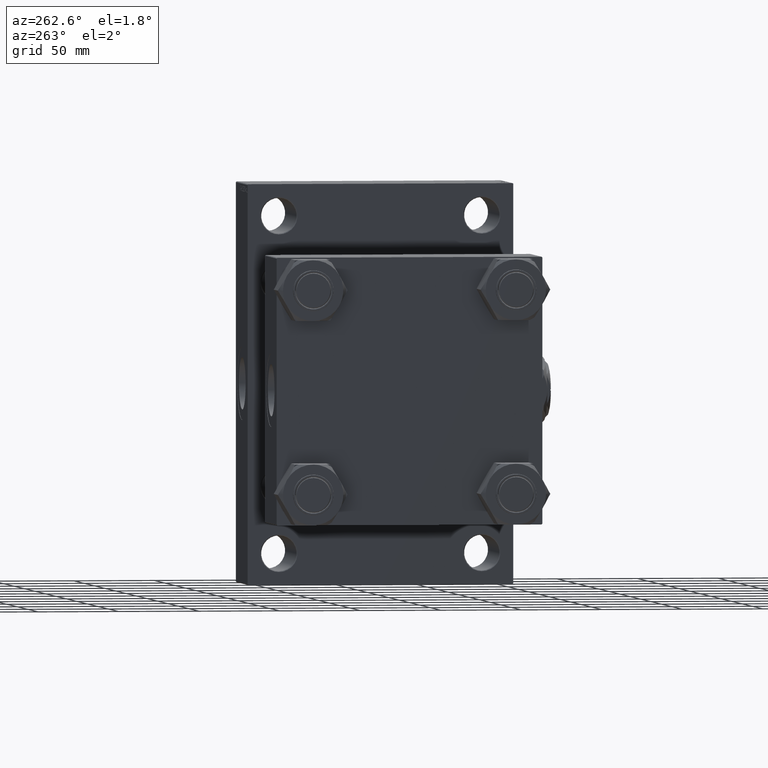
[diagram: clean part render]
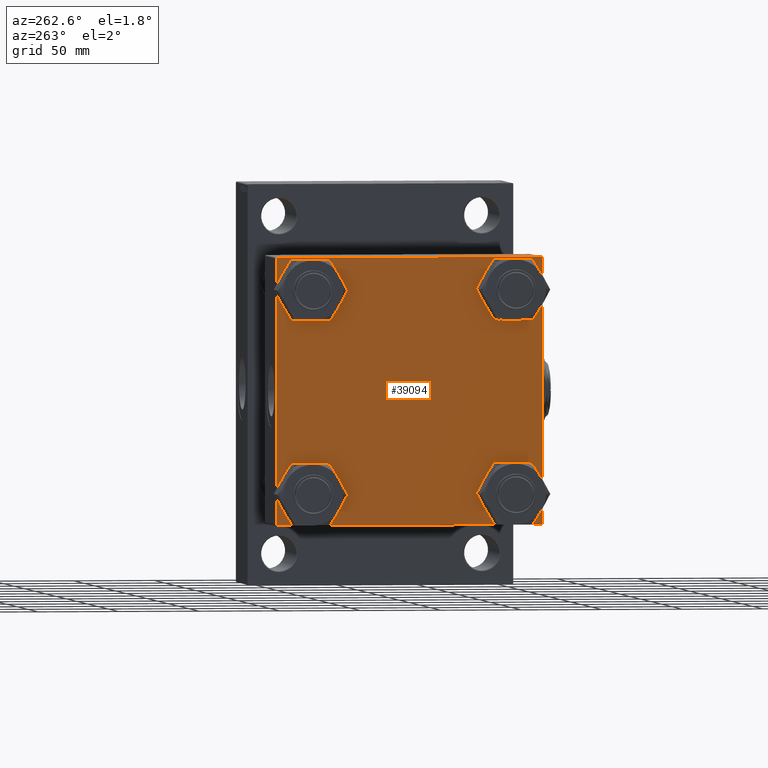
[diagram: same view with one face highlighted and labeled with its STEP entity id]
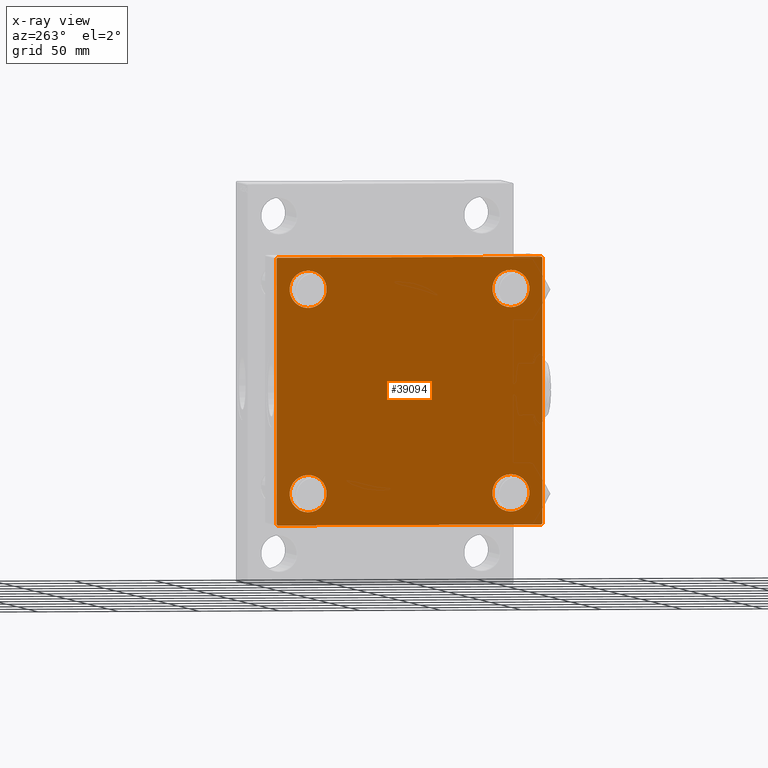
[diagram: x-ray of the same camera — body ghosted, the highlighted face saturated]
A machine part, auxiliary view. The second image highlights one B-rep face of the part: STEP entity #39094.
The next image is the same camera in x-ray: the body ghosted, the highlighted face saturated — about 0% of this face is hidden behind the body in this view.
In plain terms, the highlighted planar face has unit normal (-1, 0, 0).
Its self-contained STEP definition (entity closure, byte-faithful):
#364 = EDGE_CURVE ( 'NONE', #43407, #43970, #48313, .T. ) ;
#513 = LINE ( 'NONE', #38645, #2819 ) ;
#860 = ORIENTED_EDGE ( 'NONE', *, *, #45521, .T. ) ;
#878 = AXIS2_PLACEMENT_3D ( 'NONE', #19694, #15901, #27020 ) ;
#913 = ORIENTED_EDGE ( 'NONE', *, *, #29666, .T. ) ;
#977 = CIRCLE ( 'NONE', #7442, 11.50000000000001066 ) ;
#1430 = PLANE ( 'NONE',  #32604 ) ;
#2237 = VERTEX_POINT ( 'NONE', #25948 ) ;
#2379 = LINE ( 'NONE', #30826, #13463 ) ;
#2819 = VECTOR ( 'NONE', #4066, 1000.000000000000114 ) ;
#3433 = CARTESIAN_POINT ( 'NONE',  ( 0.000000000000000000, 82.50000000000002842, 82.50000000000002842 ) ) ;
#3715 = DIRECTION ( 'NONE',  ( 0.000000000000000000, -1.000000000000000000, -8.410780489584519171E-17 ) ) ;
#4066 = DIRECTION ( 'NONE',  ( -0.000000000000000000, -0.7071067811865474617, -0.7071067811865474617 ) ) ;
#4760 = CARTESIAN_POINT ( 'NONE',  ( 0.000000000000000000, -62.94999999999998153, -51.45000000000000995 ) ) ;
#4826 = ORIENTED_EDGE ( 'NONE', *, *, #33038, .T. ) ;
#5235 = CARTESIAN_POINT ( 'NONE',  ( 0.000000000000000000, 0.000000000000000000, 0.000000000000000000 ) ) ;
#6613 = ORIENTED_EDGE ( 'NONE', *, *, #39920, .T. ) ;
#6806 = CARTESIAN_POINT ( 'NONE',  ( 0.000000000000000000, 62.95000000000000284, -62.95000000000000284 ) ) ;
#7195 = CIRCLE ( 'NONE', #43449, 11.50000000000001066 ) ;
#7228 = DIRECTION ( 'NONE',  ( 0.000000000000000000, 0.000000000000000000, 1.000000000000000000 ) ) ;
#7442 = AXIS2_PLACEMENT_3D ( 'NONE', #28241, #43636, #24451 ) ;
#7908 = CARTESIAN_POINT ( 'NONE',  ( 0.000000000000000000, -81.99999999999997158, 82.50000000000001421 ) ) ;
#8299 = CIRCLE ( 'NONE', #47797, 11.50000000000001066 ) ;
#8434 = EDGE_CURVE ( 'NONE', #44608, #48325, #15570, .T. ) ;
#9012 = FACE_OUTER_BOUND ( 'NONE', #23523, .T. ) ;
#9183 = VECTOR ( 'NONE', #39345, 999.9999999999998863 ) ;
#9752 = CARTESIAN_POINT ( 'NONE',  ( 0.000000000000000000, 82.50000000000002842, -82.00000000000000000 ) ) ;
#9877 = EDGE_CURVE ( 'NONE', #24229, #45655, #7195, .T. ) ;
#9923 = ORIENTED_EDGE ( 'NONE', *, *, #22734, .T. ) ;
#10230 = LINE ( 'NONE', #3433, #22522 ) ;
#10556 = EDGE_CURVE ( 'NONE', #38354, #39057, #10230, .T. ) ;
#11010 = CARTESIAN_POINT ( 'NONE',  ( 0.000000000000000000, -62.94999999999998153, 62.95000000000001705 ) ) ;
#11611 = EDGE_LOOP ( 'NONE', ( #4826, #9923 ) ) ;
#11619 = EDGE_LOOP ( 'NONE', ( #18708, #44021 ) ) ;
#11715 = CARTESIAN_POINT ( 'NONE',  ( 0.000000000000000000, -62.94999999999998153, 51.45000000000000995 ) ) ;
#11836 = CARTESIAN_POINT ( 'NONE',  ( 0.000000000000000000, -82.25000000000115108, -82.24999999999886313 ) ) ;
#12902 = CARTESIAN_POINT ( 'NONE',  ( 0.000000000000000000, 62.95000000000000284, -51.44999999999999574 ) ) ;
#13092 = VERTEX_POINT ( 'NONE', #40693 ) ;
#13463 = VECTOR ( 'NONE', #46225, 1000.000000000000000 ) ;
#13503 = VERTEX_POINT ( 'NONE', #38478 ) ;
#14762 = DIRECTION ( 'NONE',  ( 0.000000000000000000, 0.000000000000000000, 1.000000000000000000 ) ) ;
#14789 = EDGE_CURVE ( 'NONE', #43970, #43407, #45205, .T. ) ;
#14946 = ORIENTED_EDGE ( 'NONE', *, *, #8434, .F. ) ;
#15105 = VECTOR ( 'NONE', #41633, 1000.000000000000114 ) ;
#15570 = LINE ( 'NONE', #18352, #30627 ) ;
#15859 = EDGE_CURVE ( 'NONE', #34023, #13503, #35575, .T. ) ;
#15901 = DIRECTION ( 'NONE',  ( 1.000000000000000000, -0.000000000000000000, -0.000000000000000000 ) ) ;
#17093 = DIRECTION ( 'NONE',  ( -1.000000000000000000, 0.000000000000000000, 0.000000000000000000 ) ) ;
#18352 = CARTESIAN_POINT ( 'NONE',  ( 0.000000000000000000, 82.50000000000002842, 82.50000000000002842 ) ) ;
#18708 = ORIENTED_EDGE ( 'NONE', *, *, #30030, .T. ) ;
#19694 = CARTESIAN_POINT ( 'NONE',  ( 0.000000000000000000, 62.95000000000000284, 62.95000000000000284 ) ) ;
#19992 = ORIENTED_EDGE ( 'NONE', *, *, #10556, .T. ) ;
#20358 = AXIS2_PLACEMENT_3D ( 'NONE', #6806, #48717, #32810 ) ;
#21380 = FACE_BOUND ( 'NONE', #33832, .T. ) ;
#21983 = ORIENTED_EDGE ( 'NONE', *, *, #15859, .T. ) ;
#22522 = VECTOR ( 'NONE', #29420, 1000.000000000000000 ) ;
#22606 = DIRECTION ( 'NONE',  ( 1.000000000000000000, -0.000000000000000000, -0.000000000000000000 ) ) ;
#22734 = EDGE_CURVE ( 'NONE', #49173, #46113, #8299, .T. ) ;
#23523 = EDGE_LOOP ( 'NONE', ( #19992, #6613, #39230, #33307, #46592, #860, #14946, #32667 ) ) ;
#23543 = EDGE_CURVE ( 'NONE', #13092, #42721, #41577, .T. ) ;
#23898 = CARTESIAN_POINT ( 'NONE',  ( 0.000000000000000000, -82.00000000000000000, -82.50000000000000000 ) ) ;
#23954 = LINE ( 'NONE', #11836, #9183 ) ;
#24229 = VERTEX_POINT ( 'NONE', #49538 ) ;
#24451 = DIRECTION ( 'NONE',  ( 0.000000000000000000, 0.000000000000000000, 1.000000000000000000 ) ) ;
#24649 = EDGE_CURVE ( 'NONE', #42721, #2237, #23954, .T. ) ;
#25098 = AXIS2_PLACEMENT_3D ( 'NONE', #49358, #22606, #14762 ) ;
#25569 = DIRECTION ( 'NONE',  ( 0.000000000000000000, 0.000000000000000000, 1.000000000000000000 ) ) ;
#25948 = CARTESIAN_POINT ( 'NONE',  ( 0.000000000000000000, -82.50000000000000000, -81.99999999999998579 ) ) ;
#26233 = LINE ( 'NONE', #49207, #15105 ) ;
#26389 = CARTESIAN_POINT ( 'NONE',  ( 0.000000000000000000, -62.94999999999998153, 62.95000000000001705 ) ) ;
#26569 = AXIS2_PLACEMENT_3D ( 'NONE', #39010, #35693, #31681 ) ;
#27020 = DIRECTION ( 'NONE',  ( 0.000000000000000000, 0.000000000000000000, 1.000000000000000000 ) ) ;
#28241 = CARTESIAN_POINT ( 'NONE',  ( 0.000000000000000000, -62.94999999999998153, -62.95000000000001705 ) ) ;
#29420 = DIRECTION ( 'NONE',  ( 0.000000000000000000, 0.000000000000000000, -1.000000000000000000 ) ) ;
#29666 = EDGE_CURVE ( 'NONE', #13503, #34023, #39651, .T. ) ;
#30030 = EDGE_CURVE ( 'NONE', #45655, #24229, #977, .T. ) ;
#30361 = CARTESIAN_POINT ( 'NONE',  ( 0.000000000000000000, 62.95000000000000284, 51.44999999999999574 ) ) ;
#30627 = VECTOR ( 'NONE', #3715, 1000.000000000000000 ) ;
#30707 = DIRECTION ( 'NONE',  ( 1.000000000000000000, -0.000000000000000000, -0.000000000000000000 ) ) ;
#30826 = CARTESIAN_POINT ( 'NONE',  ( 0.000000000000000000, -82.49999999999997158, 82.50000000000001421 ) ) ;
#30945 = VECTOR ( 'NONE', #45065, 1000.000000000000114 ) ;
#31136 = CARTESIAN_POINT ( 'NONE',  ( 0.000000000000000000, 82.50000000000002842, 82.00000000000005684 ) ) ;
#31427 = EDGE_LOOP ( 'NONE', ( #21983, #913 ) ) ;
#31666 = ORIENTED_EDGE ( 'NONE', *, *, #14789, .T. ) ;
#31681 = DIRECTION ( 'NONE',  ( 0.000000000000000000, 0.000000000000000000, 1.000000000000000000 ) ) ;
#32604 = AXIS2_PLACEMENT_3D ( 'NONE', #5235, #17093, #35765 ) ;
#32667 = ORIENTED_EDGE ( 'NONE', *, *, #32972, .T. ) ;
#32810 = DIRECTION ( 'NONE',  ( 0.000000000000000000, 0.000000000000000000, 1.000000000000000000 ) ) ;
#32813 = ORIENTED_EDGE ( 'NONE', *, *, #364, .T. ) ;
#32972 = EDGE_CURVE ( 'NONE', #44608, #38354, #33949, .T. ) ;
#33038 = EDGE_CURVE ( 'NONE', #46113, #49173, #41385, .T. ) ;
#33303 = CARTESIAN_POINT ( 'NONE',  ( 0.000000000000000000, 62.95000000000000284, 74.45000000000001705 ) ) ;
#33307 = ORIENTED_EDGE ( 'NONE', *, *, #24649, .T. ) ;
#33553 = CARTESIAN_POINT ( 'NONE',  ( 0.000000000000000000, -82.49999999999997158, 82.00000000000001421 ) ) ;
#33692 = DIRECTION ( 'NONE',  ( 1.000000000000000000, -0.000000000000000000, -0.000000000000000000 ) ) ;
#33732 = CARTESIAN_POINT ( 'NONE',  ( 0.000000000000000000, 82.50000000000002842, -82.49999999999997158 ) ) ;
#33832 = EDGE_LOOP ( 'NONE', ( #32813, #31666 ) ) ;
#33949 = LINE ( 'NONE', #48595, #30945 ) ;
#34023 = VERTEX_POINT ( 'NONE', #12902 ) ;
#35575 = CIRCLE ( 'NONE', #25098, 11.50000000000001066 ) ;
#35693 = DIRECTION ( 'NONE',  ( 1.000000000000000000, -0.000000000000000000, -0.000000000000000000 ) ) ;
#35741 = VECTOR ( 'NONE', #49150, 1000.000000000000000 ) ;
#35765 = DIRECTION ( 'NONE',  ( 0.000000000000000000, 0.000000000000000000, 1.000000000000000000 ) ) ;
#36007 = FACE_BOUND ( 'NONE', #31427, .T. ) ;
#37222 = DIRECTION ( 'NONE',  ( 0.000000000000000000, 0.000000000000000000, 1.000000000000000000 ) ) ;
#38354 = VERTEX_POINT ( 'NONE', #31136 ) ;
#38478 = CARTESIAN_POINT ( 'NONE',  ( 0.000000000000000000, 62.95000000000000284, -74.45000000000001705 ) ) ;
#38645 = CARTESIAN_POINT ( 'NONE',  ( 0.000000000000000000, 82.25000000000001421, -82.25000000000001421 ) ) ;
#39010 = CARTESIAN_POINT ( 'NONE',  ( 0.000000000000000000, 62.95000000000000284, 62.95000000000000284 ) ) ;
#39057 = VERTEX_POINT ( 'NONE', #9752 ) ;
#39094 = ADVANCED_FACE ( 'NONE', ( #39569, #40055, #36007, #21380, #9012 ), #1430, .T. ) ;
#39230 = ORIENTED_EDGE ( 'NONE', *, *, #23543, .T. ) ;
#39345 = DIRECTION ( 'NONE',  ( 0.000000000000000000, -0.7071067811865376918, 0.7071067811865574537 ) ) ;
#39569 = FACE_BOUND ( 'NONE', #11611, .T. ) ;
#39651 = CIRCLE ( 'NONE', #20358, 11.50000000000001066 ) ;
#39793 = AXIS2_PLACEMENT_3D ( 'NONE', #26389, #33692, #37222 ) ;
#39920 = EDGE_CURVE ( 'NONE', #39057, #13092, #513, .T. ) ;
#40055 = FACE_BOUND ( 'NONE', #11619, .T. ) ;
#40693 = CARTESIAN_POINT ( 'NONE',  ( 0.000000000000000000, 82.00000000000005684, -82.49999999999997158 ) ) ;
#40715 = DIRECTION ( 'NONE',  ( 1.000000000000000000, -0.000000000000000000, -0.000000000000000000 ) ) ;
#41385 = CIRCLE ( 'NONE', #39793, 11.50000000000001066 ) ;
#41577 = LINE ( 'NONE', #33732, #35741 ) ;
#41633 = DIRECTION ( 'NONE',  ( -0.000000000000000000, 0.7071067811865474617, 0.7071067811865474617 ) ) ;
#42721 = VERTEX_POINT ( 'NONE', #23898 ) ;
#43361 = VERTEX_POINT ( 'NONE', #33553 ) ;
#43407 = VERTEX_POINT ( 'NONE', #33303 ) ;
#43449 = AXIS2_PLACEMENT_3D ( 'NONE', #48786, #40715, #25569 ) ;
#43636 = DIRECTION ( 'NONE',  ( 1.000000000000000000, -0.000000000000000000, -0.000000000000000000 ) ) ;
#43970 = VERTEX_POINT ( 'NONE', #30361 ) ;
#44021 = ORIENTED_EDGE ( 'NONE', *, *, #9877, .T. ) ;
#44608 = VERTEX_POINT ( 'NONE', #49707 ) ;
#45065 = DIRECTION ( 'NONE',  ( 0.000000000000000000, 0.7071067811865474617, -0.7071067811865474617 ) ) ;
#45205 = CIRCLE ( 'NONE', #878, 11.50000000000001066 ) ;
#45306 = EDGE_CURVE ( 'NONE', #43361, #2237, #2379, .T. ) ;
#45521 = EDGE_CURVE ( 'NONE', #43361, #48325, #26233, .T. ) ;
#45655 = VERTEX_POINT ( 'NONE', #4760 ) ;
#46113 = VERTEX_POINT ( 'NONE', #49600 ) ;
#46225 = DIRECTION ( 'NONE',  ( 0.000000000000000000, -1.682156097916903588E-16, -1.000000000000000000 ) ) ;
#46592 = ORIENTED_EDGE ( 'NONE', *, *, #45306, .F. ) ;
#47797 = AXIS2_PLACEMENT_3D ( 'NONE', #11010, #30707, #7228 ) ;
#48313 = CIRCLE ( 'NONE', #26569, 11.50000000000001066 ) ;
#48325 = VERTEX_POINT ( 'NONE', #7908 ) ;
#48595 = CARTESIAN_POINT ( 'NONE',  ( 0.000000000000000000, 82.25000000000002842, 82.25000000000002842 ) ) ;
#48717 = DIRECTION ( 'NONE',  ( 1.000000000000000000, -0.000000000000000000, -0.000000000000000000 ) ) ;
#48786 = CARTESIAN_POINT ( 'NONE',  ( 0.000000000000000000, -62.94999999999998153, -62.95000000000001705 ) ) ;
#49150 = DIRECTION ( 'NONE',  ( 0.000000000000000000, -1.000000000000000000, -1.682156097916903588E-16 ) ) ;
#49173 = VERTEX_POINT ( 'NONE', #11715 ) ;
#49207 = CARTESIAN_POINT ( 'NONE',  ( 0.000000000000000000, -82.25000000000000000, 82.25000000000000000 ) ) ;
#49358 = CARTESIAN_POINT ( 'NONE',  ( 0.000000000000000000, 62.95000000000000284, -62.95000000000000284 ) ) ;
#49538 = CARTESIAN_POINT ( 'NONE',  ( 0.000000000000000000, -62.94999999999998153, -74.45000000000003126 ) ) ;
#49600 = CARTESIAN_POINT ( 'NONE',  ( 0.000000000000000000, -62.94999999999998153, 74.45000000000003126 ) ) ;
#49707 = CARTESIAN_POINT ( 'NONE',  ( 0.000000000000000000, 82.00000000000005684, 82.50000000000002842 ) ) ;